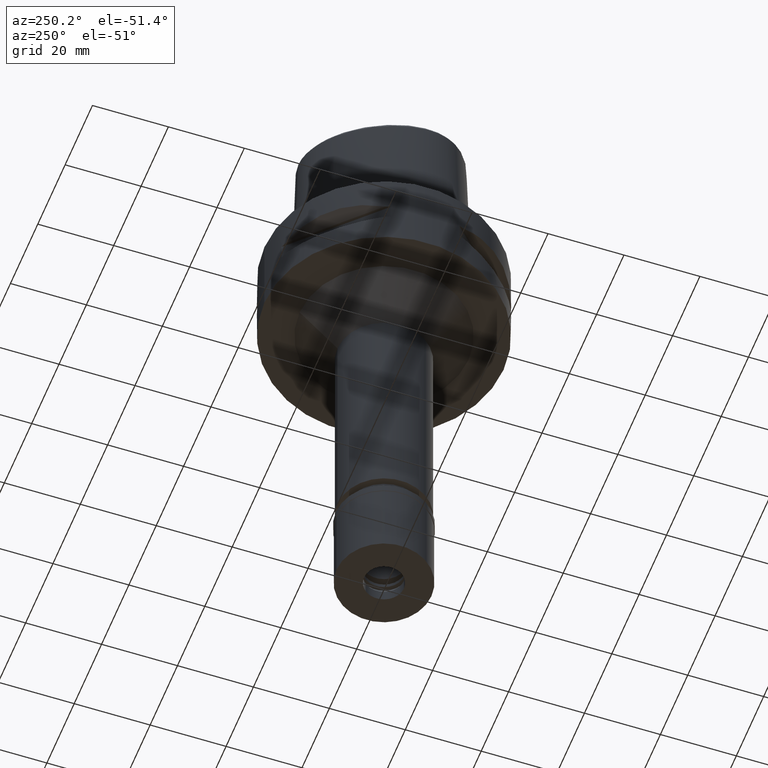
[diagram: clean part render]
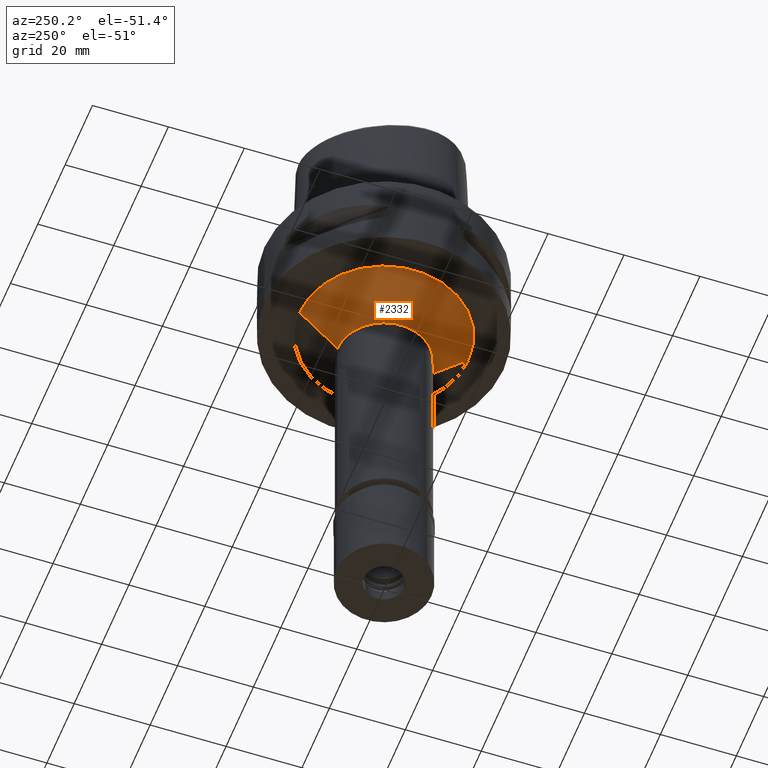
[diagram: same view with one face highlighted and labeled with its STEP entity id]
A machine part, auxiliary view. The second image highlights one B-rep face of the part: STEP entity #2332.
In plain terms, the highlighted conical surface has half-angle 45 deg.
Its self-contained STEP definition (entity closure, byte-faithful):
#543 = FACE_OUTER_BOUND ( 'NONE', #1167, .T. ) ;
#997 = ORIENTED_EDGE ( 'NONE', *, *, #1861, .T. ) ;
#1001 = CIRCLE ( 'NONE', #3948, 12.25000000000000000 ) ;
#1167 = EDGE_LOOP ( 'NONE', ( #3737, #3882, #1615, #997 ) ) ;
#1400 = VERTEX_POINT ( 'NONE', #3998 ) ;
#1453 = CARTESIAN_POINT ( 'NONE',  ( 0.0000000000000000000, 22.25000000000000000, -22.00000000000000000 ) ) ;
#1464 = CARTESIAN_POINT ( 'NONE',  ( 0.0000000000000000000, 0.0000000000000000000, -32.00000000000000000 ) ) ;
#1488 = DIRECTION ( 'NONE',  ( 0.0000000000000000000, 0.0000000000000000000, -1.000000000000000000 ) ) ;
#1539 = DIRECTION ( 'NONE',  ( 0.0000000000000000000, -1.000000000000000000, 0.0000000000000000000 ) ) ;
#1615 = ORIENTED_EDGE ( 'NONE', *, *, #3548, .T. ) ;
#1640 = CIRCLE ( 'NONE', #4510, 22.25000000000000000 ) ;
#1641 = VECTOR ( 'NONE', #4544, 1000.000000000000114 ) ;
#1669 = CARTESIAN_POINT ( 'NONE',  ( 0.0000000000000000000, 0.0000000000000000000, -27.00000000000000000 ) ) ;
#1728 = EDGE_CURVE ( 'NONE', #1400, #2744, #2924, .T. ) ;
#1861 = EDGE_CURVE ( 'NONE', #2930, #3108, #4654, .T. ) ;
#2072 = DIRECTION ( 'NONE',  ( 0.0000000000000000000, 0.0000000000000000000, 1.000000000000000000 ) ) ;
#2215 = AXIS2_PLACEMENT_3D ( 'NONE', #1669, #2072, #3650 ) ;
#2233 = CARTESIAN_POINT ( 'NONE',  ( 0.0000000000000000000, 22.25000000000000000, -22.00000000000000000 ) ) ;
#2332 = ADVANCED_FACE ( 'NONE', ( #543 ), #4449, .T. ) ;
#2508 = CARTESIAN_POINT ( 'NONE',  ( 0.0000000000000000000, -22.25000000000000000, -22.00000000000000000 ) ) ;
#2744 = VERTEX_POINT ( 'NONE', #2936 ) ;
#2755 = DIRECTION ( 'NONE',  ( 0.0000000000000000000, -1.000000000000000000, 0.0000000000000000000 ) ) ;
#2848 = DIRECTION ( 'NONE',  ( 0.0000000000000000000, 0.7071067811865474617, -0.7071067811865474617 ) ) ;
#2924 = LINE ( 'NONE', #2508, #3443 ) ;
#2930 = VERTEX_POINT ( 'NONE', #2233 ) ;
#2936 = CARTESIAN_POINT ( 'NONE',  ( 0.0000000000000000000, -12.25000000000000000, -32.00000000000000000 ) ) ;
#3108 = VERTEX_POINT ( 'NONE', #4407 ) ;
#3140 = CARTESIAN_POINT ( 'NONE',  ( 0.0000000000000000000, 0.0000000000000000000, -22.00000000000000000 ) ) ;
#3443 = VECTOR ( 'NONE', #2848, 1000.000000000000114 ) ;
#3548 = EDGE_CURVE ( 'NONE', #1400, #2930, #1640, .T. ) ;
#3650 = DIRECTION ( 'NONE',  ( 0.0000000000000000000, 1.000000000000000000, 0.0000000000000000000 ) ) ;
#3737 = ORIENTED_EDGE ( 'NONE', *, *, #4597, .F. ) ;
#3882 = ORIENTED_EDGE ( 'NONE', *, *, #1728, .F. ) ;
#3948 = AXIS2_PLACEMENT_3D ( 'NONE', #1464, #4693, #1539 ) ;
#3998 = CARTESIAN_POINT ( 'NONE',  ( 0.0000000000000000000, -22.25000000000000000, -22.00000000000000000 ) ) ;
#4407 = CARTESIAN_POINT ( 'NONE',  ( 0.0000000000000000000, 12.25000000000000000, -32.00000000000000000 ) ) ;
#4449 = CONICAL_SURFACE ( 'NONE', #2215, 17.25000000000000000, 0.7853981633972997312 ) ;
#4510 = AXIS2_PLACEMENT_3D ( 'NONE', #3140, #1488, #2755 ) ;
#4544 = DIRECTION ( 'NONE',  ( 0.0000000000000000000, -0.7071067811865474617, -0.7071067811865474617 ) ) ;
#4597 = EDGE_CURVE ( 'NONE', #2744, #3108, #1001, .T. ) ;
#4654 = LINE ( 'NONE', #1453, #1641 ) ;
#4693 = DIRECTION ( 'NONE',  ( 0.0000000000000000000, 0.0000000000000000000, -1.000000000000000000 ) ) ;